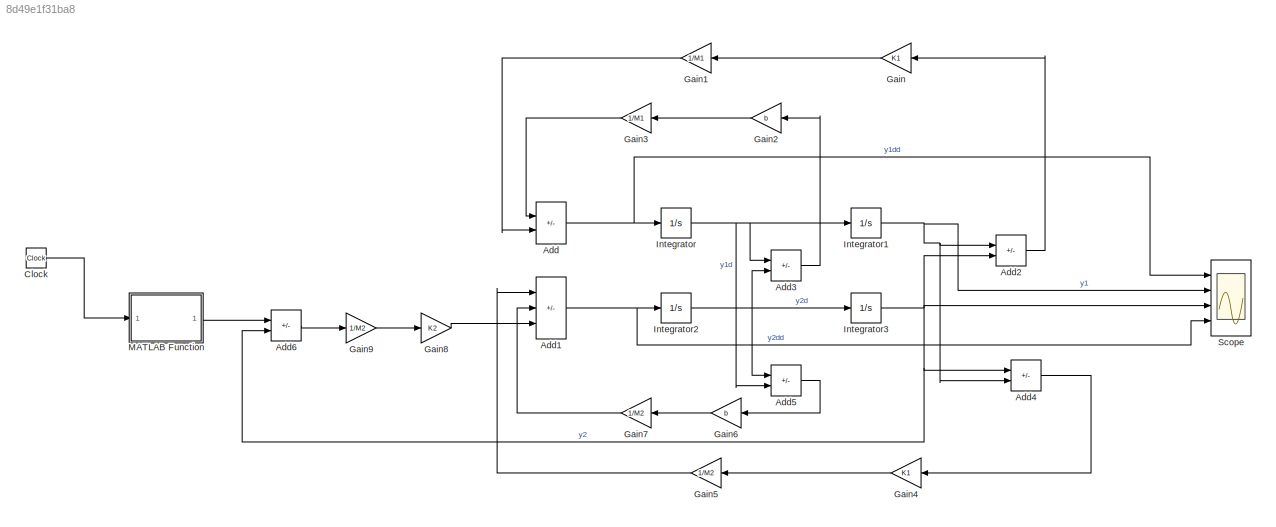
MODEL slx_8d49e1f31ba8
KIND model
CONFIG AbsTol = auto
CONFIG EnableMultiTasking = off
CONFIG FixedStep = auto
CONFIG MaxStep = auto
CONFIG MinStep = auto
CONFIG PostLoadFcn = M1=100;\nM2=10;\nK1=60;\nK2=30;\nb=50;
CONFIG RelTol = 1e-3
CONFIG SampleTimeConstraint = Unconstrained
CONFIG Solver = VariableStepAuto
CONFIG SolverName = VariableStepAuto
CONFIG StartTime = 0.0
CONFIG StopTime = 10.0
BLOCK [Sum] Add
  IconShape = rectangular
  Inputs = --
  Ports = [2, 1]
BLOCK [Sum] Add1
  IconShape = rectangular
  Inputs = ---
  Ports = [3, 1]
BLOCK [Sum] Add2
  IconShape = rectangular
  Inputs = +-
  Ports = [2, 1]
BLOCK [Sum] Add3
  IconShape = rectangular
  Inputs = +-
  Ports = [2, 1]
BLOCK [Sum] Add4
  IconShape = rectangular
  Inputs = +-
  Ports = [2, 1]
BLOCK [Sum] Add5
  IconShape = rectangular
  Inputs = +-
  Ports = [2, 1]
BLOCK [Sum] Add6
  IconShape = rectangular
  Inputs = -+
  Ports = [2, 1]
BLOCK [Clock] Clock
BLOCK [Gain] Gain
  Gain = K1
  NameLocation = top
BLOCK [Gain] Gain1
  Gain = 1/M1
  NameLocation = top
BLOCK [Gain] Gain2
  Gain = b
  NameLocation = top
BLOCK [Gain] Gain3
  Gain = 1/M1
  NameLocation = top
BLOCK [Gain] Gain4
  Gain = K1
  NameLocation = top
BLOCK [Gain] Gain5
  Gain = 1/M2
  NameLocation = top
BLOCK [Gain] Gain6
  Gain = b
  NameLocation = top
BLOCK [Gain] Gain7
  Gain = 1/M2
  NameLocation = top
BLOCK [Gain] Gain8
  Gain = K2
BLOCK [Gain] Gain9
  Gain = 1/M2
BLOCK [Integrator] Integrator
  Ports = [1, 1]
BLOCK [Integrator] Integrator1
  Ports = [1, 1]
BLOCK [Integrator] Integrator2
  Ports = [1, 1]
BLOCK [Integrator] Integrator3
  Ports = [1, 1]
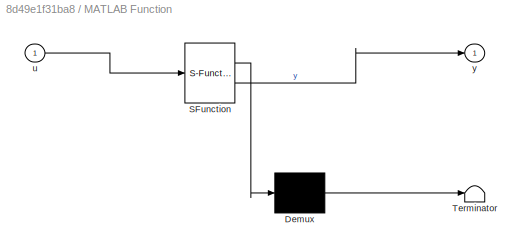
BLOCK [SubSystem] MATLAB Function
  ErrorFcn = Stateflow.Translate.translate
  PermitHierarchicalResolution = ExplicitOnly
  Ports = [1, 1]
  RequestExecContextInheritance = off
  SFBlockType = MATLAB Function
  TreatAsAtomicUnit = on
BLOCK [Demux] MATLAB Function/ Demux 
  Outputs = 1
  Ports = [1, 1]
BLOCK [S-Function] MATLAB Function/ SFunction 
  EnableBusSupport = on
  FunctionName = sf_sfun
  PortCounts = [1 2]
  Ports = [1, 2]
  SFcnIsStateOwnerBlock = off
  SFunctionDeploymentMode = off
  Tag = Stateflow S-Function 2
BLOCK [Terminator] MATLAB Function/ Terminator 
BLOCK [Inport] MATLAB Function/u
BLOCK [Outport] MATLAB Function/y
BLOCK [Scope] Scope
  Floating = off
  NumInputPorts = 4
  Ports = [4]
  ScopeSpecificationString = Simulink.scopes.TimeScopeBlockCfg('CurrentConfiguration', extmgr.ConfigurationSet(extmgr.Configuration('Core','General UI',true),extmgr.Configuration('Core','Source UI',true),extmgr.Configuration('Sources','WiredSimulink',true),extmgr.Configuration('Visuals','Time Domain',true,'SerializedDisplays',{struct('MinYLimReal','-0.87862','MaxYLimReal','0.92993','YLabelReal','','MinYLimMag','0.00000','MaxY...<+3491ch>
NET Add1:1 -> Integrator2:1, Scope:4
LINE Add2:1 -> Gain:1
LINE Add3:1 -> Gain2:1
LINE Add4:1 -> Gain4:1
LINE Add5:1 -> Gain6:1
LINE Add6:1 -> Gain9:1
NET Add:1 -> Integrator:1, Scope:1
LINE Clock:1 -> MATLAB Function:1
LINE Gain1:1 -> Add:2
LINE Gain2:1 -> Gain3:1
LINE Gain3:1 -> Add:1
LINE Gain4:1 -> Gain5:1
LINE Gain5:1 -> Add1:1
LINE Gain6:1 -> Gain7:1
LINE Gain7:1 -> Add1:2
LINE Gain8:1 -> Add1:3
LINE Gain9:1 -> Gain8:1
LINE Gain:1 -> Gain1:1
NET Integrator1:1 -> Add2:1, Add4:2, Scope:2
NET Integrator2:1 -> Add3:2, Add5:1, Integrator3:1
NET Integrator3:1 -> Add2:2, Add4:1, Add6:2, Scope:3
NET Integrator:1 -> Add3:1, Add5:2, Integrator1:1
LINE MATLAB Function:1 -> Add6:1
note: NET lines group one-source signal fan-out (src -> all destinations, sorted); 1:1 wires keep LINE
CHART MATLAB Function states=1 transitions=1
  STATE_LABEL 'eML_blk_kernel()'
  STATE_LABEL 'SCRIPT:\nfunction y = fcn(u)\nif((u>=0) && (u<2))\n    y=1;\nelseif ((u>=2) && (u>5))\n    y=sin(2*pi*u);\nelseif ((u>=5) && (u<8))\n    y=3.5;\nelse\n    y=0.3;\nend\n'
CHART  states=0 transitions=0
